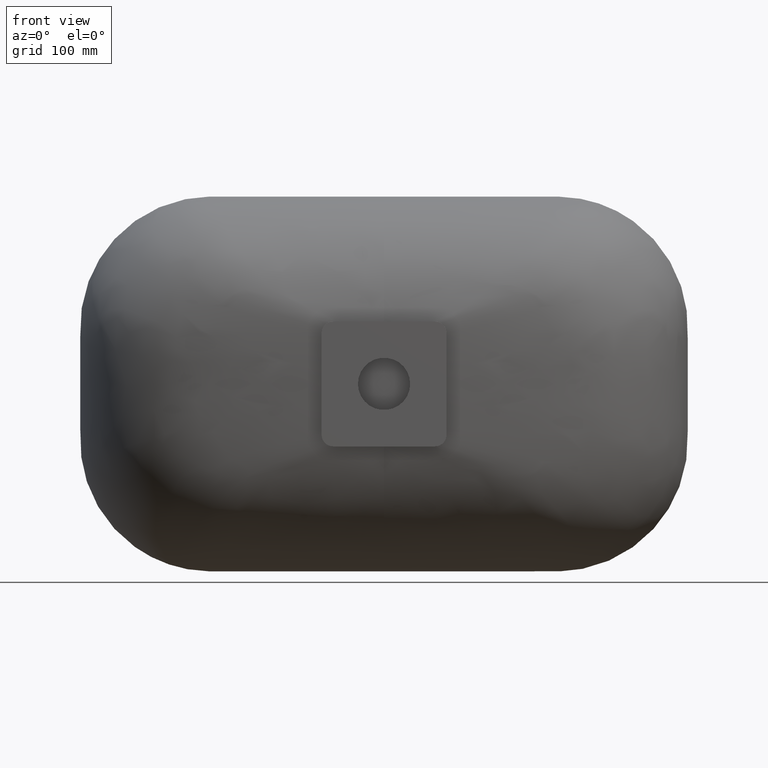
[diagram: clean part render]
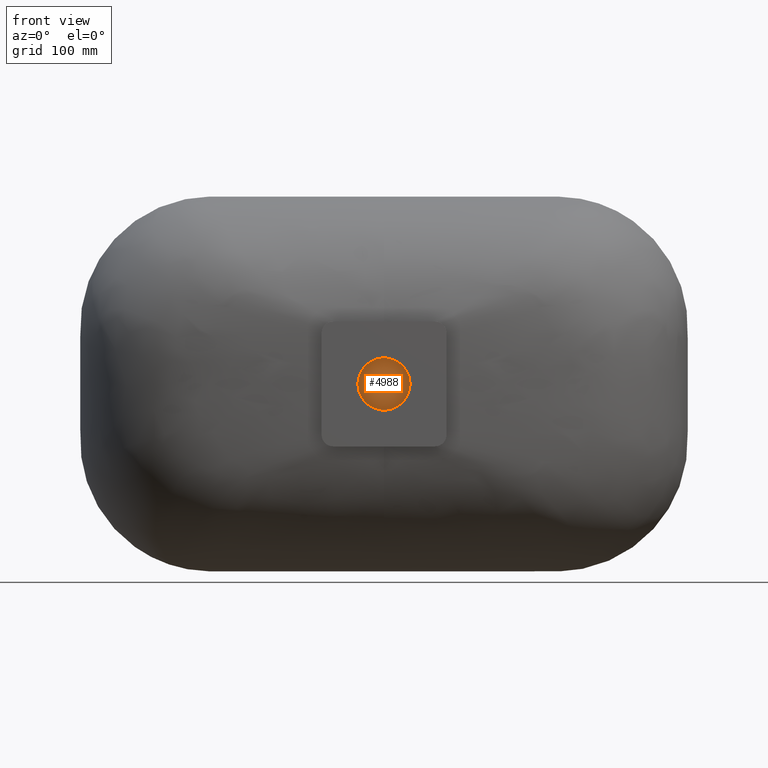
[diagram: same view with one face highlighted and labeled with its STEP entity id]
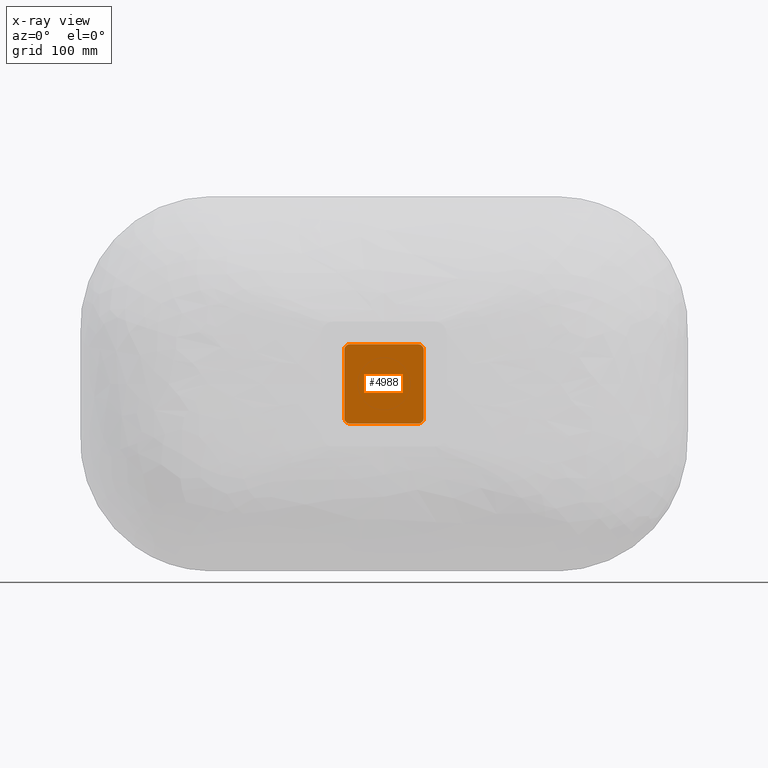
[diagram: x-ray of the same camera — body ghosted, the highlighted face saturated]
A machine part, front view. The second image highlights one B-rep face of the part: STEP entity #4988.
The next image is the same camera in x-ray: the body ghosted, the highlighted face saturated — about 0% of this face is hidden behind the body in this view.
In plain terms, the highlighted planar face has unit normal (0, 1, 0).
Its self-contained STEP definition (entity closure, byte-faithful):
#86 = LINE ( 'NONE', #633, #6725 ) ;
#287 = CARTESIAN_POINT ( 'NONE',  ( 29.99999999999997200, -123.0000000000000000, -35.00000000000000000 ) ) ;
#615 = ORIENTED_EDGE ( 'NONE', *, *, #4705, .F. ) ;
#633 = CARTESIAN_POINT ( 'NONE',  ( -29.99999999999995400, -123.0000000000000000, 35.00000000000000000 ) ) ;
#696 = CARTESIAN_POINT ( 'NONE',  ( -29.99999999999995400, -123.0000000000000000, 35.00000000000000000 ) ) ;
#893 = VERTEX_POINT ( 'NONE', #2662 ) ;
#922 = CARTESIAN_POINT ( 'NONE',  ( -29.99999999999999300, -123.0000000000000000, 30.00000000000000000 ) ) ;
#1110 = VERTEX_POINT ( 'NONE', #7074 ) ;
#1129 = CARTESIAN_POINT ( 'NONE',  ( -34.99999999999999300, -123.0000000000000000, 30.00000000000000000 ) ) ;
#1143 = DIRECTION ( 'NONE',  ( 0.0000000000000000000, 1.000000000000000000, 0.0000000000000000000 ) ) ;
#1345 = VECTOR ( 'NONE', #2173, 1000.000000000000000 ) ;
#1367 = EDGE_CURVE ( 'NONE', #893, #6958, #5054, .T. ) ;
#1382 = VERTEX_POINT ( 'NONE', #5920 ) ;
#1539 = DIRECTION ( 'NONE',  ( 0.0000000000000000000, 0.0000000000000000000, 1.000000000000000000 ) ) ;
#1549 = CARTESIAN_POINT ( 'NONE',  ( -34.99999999999999300, -123.0000000000000000, -29.99999999999996100 ) ) ;
#1570 = VERTEX_POINT ( 'NONE', #2855 ) ;
#1740 = CIRCLE ( 'NONE', #7416, 5.000000000000004400 ) ;
#1754 = CARTESIAN_POINT ( 'NONE',  ( 30.00000000000000700, -123.0000000000000000, -30.00000000000000000 ) ) ;
#1770 = CARTESIAN_POINT ( 'NONE',  ( 35.00000000000000700, -123.0000000000000000, 29.99999999999992900 ) ) ;
#1785 = ORIENTED_EDGE ( 'NONE', *, *, #1367, .F. ) ;
#1798 = ORIENTED_EDGE ( 'NONE', *, *, #2323, .F. ) ;
#1805 = ORIENTED_EDGE ( 'NONE', *, *, #6929, .F. ) ;
#1935 = VECTOR ( 'NONE', #5290, 1000.000000000000000 ) ;
#2173 = DIRECTION ( 'NONE',  ( -1.000000000000000000, 0.0000000000000000000, 0.0000000000000000000 ) ) ;
#2323 = EDGE_CURVE ( 'NONE', #2462, #893, #7784, .T. ) ;
#2373 = DIRECTION ( 'NONE',  ( 0.0000000000000000000, 1.000000000000000000, 0.0000000000000000000 ) ) ;
#2385 = DIRECTION ( 'NONE',  ( 0.0000000000000000000, 0.0000000000000000000, 1.000000000000000000 ) ) ;
#2462 = VERTEX_POINT ( 'NONE', #5492 ) ;
#2662 = CARTESIAN_POINT ( 'NONE',  ( -34.99999999999999300, -123.0000000000000000, -29.99999999999996400 ) ) ;
#2728 = AXIS2_PLACEMENT_3D ( 'NONE', #1754, #6122, #2385 ) ;
#2855 = CARTESIAN_POINT ( 'NONE',  ( 35.00000000000000700, -123.0000000000000000, -29.99999999999992900 ) ) ;
#3003 = FACE_OUTER_BOUND ( 'NONE', #8066, .T. ) ;
#3004 = DIRECTION ( 'NONE',  ( 0.0000000000000000000, 1.000000000000000000, 0.0000000000000000000 ) ) ;
#3235 = VERTEX_POINT ( 'NONE', #696 ) ;
#3334 = ORIENTED_EDGE ( 'NONE', *, *, #5281, .F. ) ;
#3942 = ORIENTED_EDGE ( 'NONE', *, *, #4453, .F. ) ;
#4230 = ORIENTED_EDGE ( 'NONE', *, *, #7812, .F. ) ;
#4256 = AXIS2_PLACEMENT_3D ( 'NONE', #6751, #3004, #7388 ) ;
#4276 = LINE ( 'NONE', #1770, #7203 ) ;
#4385 = CIRCLE ( 'NONE', #2728, 5.000000000000004400 ) ;
#4453 = EDGE_CURVE ( 'NONE', #6958, #3235, #1740, .T. ) ;
#4705 = EDGE_CURVE ( 'NONE', #1382, #2462, #4865, .T. ) ;
#4789 = CARTESIAN_POINT ( 'NONE',  ( -29.99999999999999300, -123.0000000000000000, 30.00000000000000000 ) ) ;
#4865 = LINE ( 'NONE', #287, #1345 ) ;
#4879 = CARTESIAN_POINT ( 'NONE',  ( 30.00000000000000700, -123.0000000000000000, 30.00000000000000000 ) ) ;
#4983 = CARTESIAN_POINT ( 'NONE',  ( 35.00000000000000700, -123.0000000000000000, 29.99999999999992900 ) ) ;
#4988 = ADVANCED_FACE ( 'NONE', ( #3003 ), #6111, .F. ) ;
#5054 = LINE ( 'NONE', #1549, #1935 ) ;
#5173 = EDGE_CURVE ( 'NONE', #1110, #5844, #7418, .T. ) ;
#5276 = DIRECTION ( 'NONE',  ( 0.0000000000000000000, 1.000000000000000000, 0.0000000000000000000 ) ) ;
#5281 = EDGE_CURVE ( 'NONE', #5844, #1570, #4276, .T. ) ;
#5290 = DIRECTION ( 'NONE',  ( 0.0000000000000000000, 0.0000000000000000000, 1.000000000000000000 ) ) ;
#5492 = CARTESIAN_POINT ( 'NONE',  ( -29.99999999999992200, -123.0000000000000000, -35.00000000000000000 ) ) ;
#5502 = DIRECTION ( 'NONE',  ( 0.0000000000000000000, 0.0000000000000000000, 1.000000000000000000 ) ) ;
#5844 = VERTEX_POINT ( 'NONE', #4983 ) ;
#5920 = CARTESIAN_POINT ( 'NONE',  ( 29.99999999999997500, -123.0000000000000000, -35.00000000000000000 ) ) ;
#6111 = PLANE ( 'NONE',  #6396 ) ;
#6122 = DIRECTION ( 'NONE',  ( 0.0000000000000000000, 1.000000000000000000, 0.0000000000000000000 ) ) ;
#6249 = DIRECTION ( 'NONE',  ( 1.000000000000000000, 0.0000000000000000000, 0.0000000000000000000 ) ) ;
#6396 = AXIS2_PLACEMENT_3D ( 'NONE', #4789, #2373, #6735 ) ;
#6663 = AXIS2_PLACEMENT_3D ( 'NONE', #4879, #1143, #5502 ) ;
#6725 = VECTOR ( 'NONE', #6249, 1000.000000000000000 ) ;
#6735 = DIRECTION ( 'NONE',  ( 0.0000000000000000000, -0.0000000000000000000, 1.000000000000000000 ) ) ;
#6751 = CARTESIAN_POINT ( 'NONE',  ( -29.99999999999999300, -123.0000000000000000, -30.00000000000000000 ) ) ;
#6929 = EDGE_CURVE ( 'NONE', #1570, #1382, #4385, .T. ) ;
#6958 = VERTEX_POINT ( 'NONE', #1129 ) ;
#7074 = CARTESIAN_POINT ( 'NONE',  ( 29.99999999999993600, -123.0000000000000000, 35.00000000000000000 ) ) ;
#7177 = ORIENTED_EDGE ( 'NONE', *, *, #5173, .F. ) ;
#7203 = VECTOR ( 'NONE', #7371, 1000.000000000000000 ) ;
#7371 = DIRECTION ( 'NONE',  ( 0.0000000000000000000, 0.0000000000000000000, -1.000000000000000000 ) ) ;
#7388 = DIRECTION ( 'NONE',  ( 0.0000000000000000000, 0.0000000000000000000, 1.000000000000000000 ) ) ;
#7416 = AXIS2_PLACEMENT_3D ( 'NONE', #922, #5276, #1539 ) ;
#7418 = CIRCLE ( 'NONE', #6663, 5.000000000000004400 ) ;
#7784 = CIRCLE ( 'NONE', #4256, 5.000000000000004400 ) ;
#7812 = EDGE_CURVE ( 'NONE', #3235, #1110, #86, .T. ) ;
#8066 = EDGE_LOOP ( 'NONE', ( #3942, #1785, #1798, #615, #1805, #3334, #7177, #4230 ) ) ;